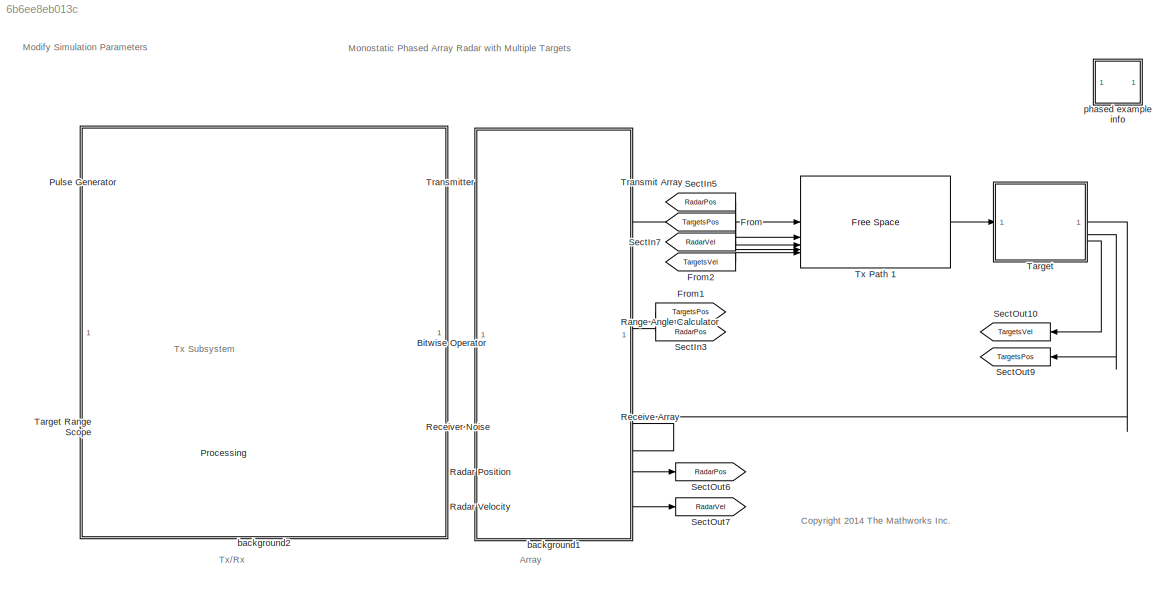
MODEL slx_6b6ee8eb013c
KIND model
CONFIG AbsTol = auto
CONFIG EnableMultiTasking = on
CONFIG FixedStep = auto
CONFIG MaxStep = auto
CONFIG MinStep = auto
CONFIG PreLoadFcn = helperslexMonostaticRadarMultipleTargetsParam()
CONFIG RelTol = 1e-3
CONFIG SampleTimeConstraint = Unconstrained
CONFIG SolverName = FixedStepDiscrete
CONFIG StartTime = 0.0
CONFIG StopTime = 99/paramRadarMT.prf
BLOCK [Reference] Bitwise Operator  REF=simulink/Logic and Bit
Operations/Bitwise
Operator
  NameLocation = left
  SourceBlock = simulink/Logic and Bit\nOperations/Bitwise\nOperator
  SourceType = Bitwise Operator
BLOCK [From] From
  GotoTag = TargetsPos
BLOCK [From] From1
  GotoTag = TargetsPos
  NameLocation = top
BLOCK [From] From2
  GotoTag = TargetsVel
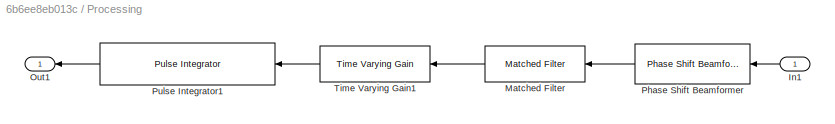
BLOCK [SubSystem] Processing
BLOCK [Inport] Processing/In1
BLOCK [Reference] Processing/Matched Filter  REF=phaseddetectlib/Matched Filter
  SourceBlock = phaseddetectlib/Matched Filter
  SourceType = phased.internal.SimulinkMatchedFilter
BLOCK [Outport] Processing/Out1
  VectorParamsAs1DForOutWhenUnconnected = off
BLOCK [Reference] Processing/Phase Shift Beamformer  REF=phasedbflib/Phase Shift Beamformer
  SourceBlock = phasedbflib/Phase Shift Beamformer
  SourceType = phased.PhaseShiftBeamformer
BLOCK [Reference] Processing/Pulse Integrator1  REF=phaseddetectlib/Pulse Integrator
  SourceBlock = phaseddetectlib/Pulse Integrator
  SourceType = Pulse Integrator
BLOCK [Reference] Processing/Time Varying Gain1  REF=phaseddetectlib/Time Varying Gain
  SourceBlock = phaseddetectlib/Time Varying Gain
  SourceType = phased.TimeVaryingGain
BLOCK [Reference] Pulse Generator  REF=phasedwavlib/Rectangular Waveform
  SourceBlock = phasedwavlib/Rectangular Waveform
  SourceType = phased.internal.SimulinkRectangularWaveform
BLOCK [Constant] Radar Position
  SampleTime = 1/paramRadarMT.prf
  Value = [ 0; 0; 0 ]
BLOCK [Constant] Radar Velocity
  SampleTime = 1/paramRadarMT.prf
  Value = [ 0; 0; 0 ]
BLOCK [Reference] Range Angle Calculator  REF=phasedenvlib/Range Angle Calculator
  NameLocation = top
  SourceBlock = phasedenvlib/Range Angle Calculator
  SourceType = phased.internal.RangeAngle
BLOCK [Reference] Receive Array  REF=phasedtxrxlib/Narrowband Receive Array
  SourceBlock = phasedtxrxlib/Narrowband Receive Array
  SourceType = phased.Collector
BLOCK [Reference] Receiver Noise  REF=phasedtxrxlib/Receiver Preamp
  SourceBlock = phasedtxrxlib/Receiver Preamp
  SourceType = phased.internal.SimulinkReceiverPreamp
BLOCK [From] SectIn3
  GotoTag = RadarPos
BLOCK [From] SectIn5
  GotoTag = RadarPos
  NameLocation = top
BLOCK [From] SectIn7
  GotoTag = RadarVel
  NameLocation = top
BLOCK [Goto] SectOut10
  GotoTag = TargetsVel
  NameLocation = top
BLOCK [Goto] SectOut6
  GotoTag = RadarPos
BLOCK [Goto] SectOut7
  GotoTag = RadarVel
BLOCK [Goto] SectOut9
  GotoTag = TargetsPos
  NameLocation = top
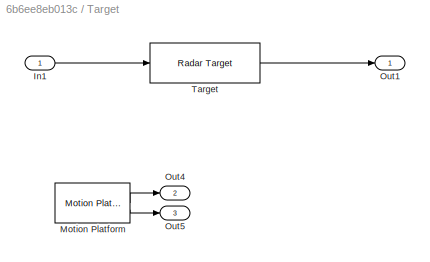
BLOCK [SubSystem] Target
BLOCK [ArrayPlot] Target Range Scope
  AxesScaling = Manual
  GraphicalSettings = {"Style":{"BackgroundColor":[0.1568627450980392,0.1568627450980392,0.1568627450980392],"AxesColor":[0,0,0],"LabelsColor":[0.6862745098039216,0.6862745098039216,0.6862745098039216],"LineStyle":["-"],"LineColor":[[1,1,0.06666666666666667]],"LineWidth":[1.5],"Marker":["none"],"FontSize":"small"}}
  MultipleDisplayCache = {"PlotAsMagnitudePhase":[false],"ShowGrid":[true],"ShowLegend":[false],"Title":["Radar Return"],"XLabel":["Range (m)"],"YLabel":["Amplitude"],"YLimits":["[-4.2427e-08,1.7395e-06]"]}
  PlotType = Line
  SampleIncrement = paramRadarMT.metersPerSample
  Title = Radar Return
  WasSavedAsWebScope = on
  WindowPosition = [838.000000,339.000000,808.000000,454.000000,]
  XLabel = Range (m)
  XOffset = paramRadarMT.rangeOffset
  YLimits = [-4.2427e-08,1.7395e-06]
BLOCK [Inport] Target/In1
BLOCK [Reference] Target/Motion Platform  REF=phasedenvlib/Motion Platform
  SourceBlock = phasedenvlib/Motion Platform
  SourceType = phased.internal.SimulinkPlatform
BLOCK [Outport] Target/Out1
  VectorParamsAs1DForOutWhenUnconnected = off
BLOCK [Outport] Target/Out4
  Port = 2
  VectorParamsAs1DForOutWhenUnconnected = off
BLOCK [Outport] Target/Out5
  Port = 3
  VectorParamsAs1DForOutWhenUnconnected = off
BLOCK [Reference] Target/Target  REF=phasedenvlib/Radar Target
  SourceBlock = phasedenvlib/Radar Target
  SourceType = phased.RadarTarget
BLOCK [Reference] Transmit Array  REF=phasedtxrxlib/Narrowband Transmit Array
  SourceBlock = phasedtxrxlib/Narrowband Transmit Array
  SourceType = phased.Radiator
BLOCK [Reference] Transmitter  REF=phasedtxrxlib/Transmitter
  SourceBlock = phasedtxrxlib/Transmitter
  SourceType = phased.internal.SimulinkTransmitter
BLOCK [Reference] Tx Path 1  REF=phasedenvlib/Free Space
  SourceBlock = phasedenvlib/Free Space
  SourceType = phased.FreeSpace
BLOCK [SubSystem] background1
  Description = Jammer
BLOCK [SubSystem] background2
  Description = Jammer
BLOCK [SubSystem] phased example info
  OpenFcn = modelname = 'slexMonostaticRadarExample';\nhelpview(fullfile(matlabroot,'help','phased','helptargets.map'),sprintf('%sExample',modelname));\nclear modelname;
ANNOTATION (root): Array
ANNOTATION (root): <copyright redacted>
ANNOTATION (root): Modify Simulation Parameters
ANNOTATION (root): Monostatic Phased Array Radar with Multiple Targets
ANNOTATION (root): Tx Subsystem
ANNOTATION (root): Tx/Rx
LINE Bitwise Operator:1 -> Receiver Noise:2
LINE From1:1 -> Range Angle Calculator:1
LINE From2:1 -> Tx Path 1:5
LINE From:1 -> Tx Path 1:3
LINE Processing/In1:1 -> Processing/Phase Shift Beamformer:1
LINE Processing/Matched Filter:1 -> Processing/Time Varying Gain1:1
LINE Processing/Phase Shift Beamformer:1 -> Processing/Matched Filter:1
LINE Processing/Pulse Integrator1:1 -> Processing/Out1:1
LINE Processing/Time Varying Gain1:1 -> Processing/Pulse Integrator1:1
LINE Processing:1 -> Target Range Scope:1
LINE Pulse Generator:1 -> Transmitter:1
LINE Radar Position:1 -> SectOut6:1
LINE Radar Velocity:1 -> SectOut7:1
NET Range Angle Calculator:1 -> Receive Array:2, Transmit Array:2
LINE Receive Array:1 -> Receiver Noise:1
LINE Receiver Noise:1 -> Processing:1
LINE SectIn3:1 -> Range Angle Calculator:2
LINE SectIn5:1 -> Tx Path 1:2
LINE SectIn7:1 -> Tx Path 1:4
LINE Target/In1:1 -> Target/Target:1
LINE Target/Motion Platform:1 -> Target/Out4:1
LINE Target/Motion Platform:2 -> Target/Out5:1
LINE Target/Target:1 -> Target/Out1:1
LINE Target:1 -> Receive Array:1
LINE Target:2 -> SectOut9:1
LINE Target:3 -> SectOut10:1
LINE Transmit Array:1 -> Tx Path 1:1
LINE Transmitter:1 -> Transmit Array:1
LINE Transmitter:2 -> Bitwise Operator:1
LINE Tx Path 1:1 -> Target:1
note: NET lines group one-source signal fan-out (src -> all destinations, sorted); 1:1 wires keep LINE
